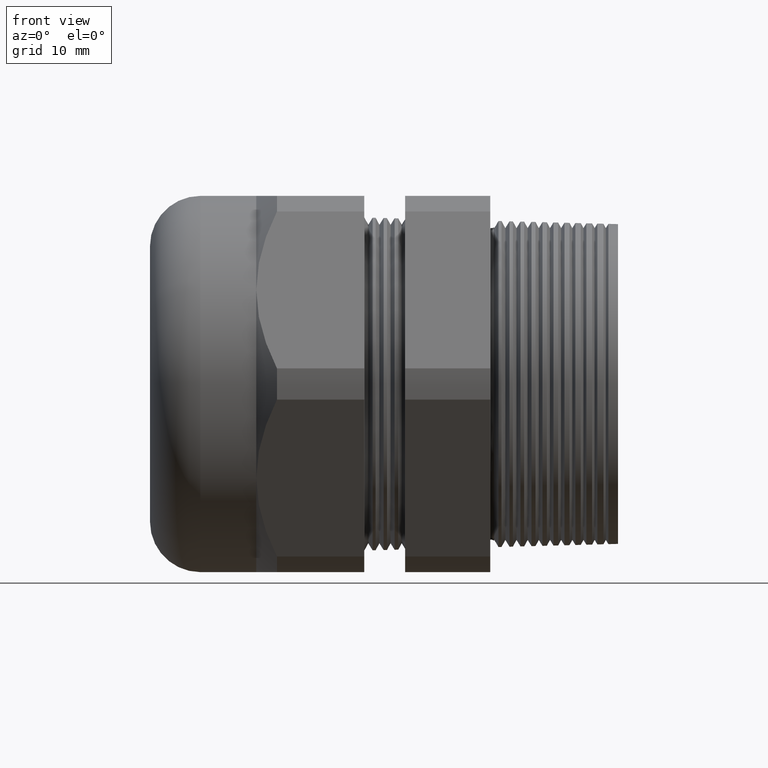
[diagram: clean part render]
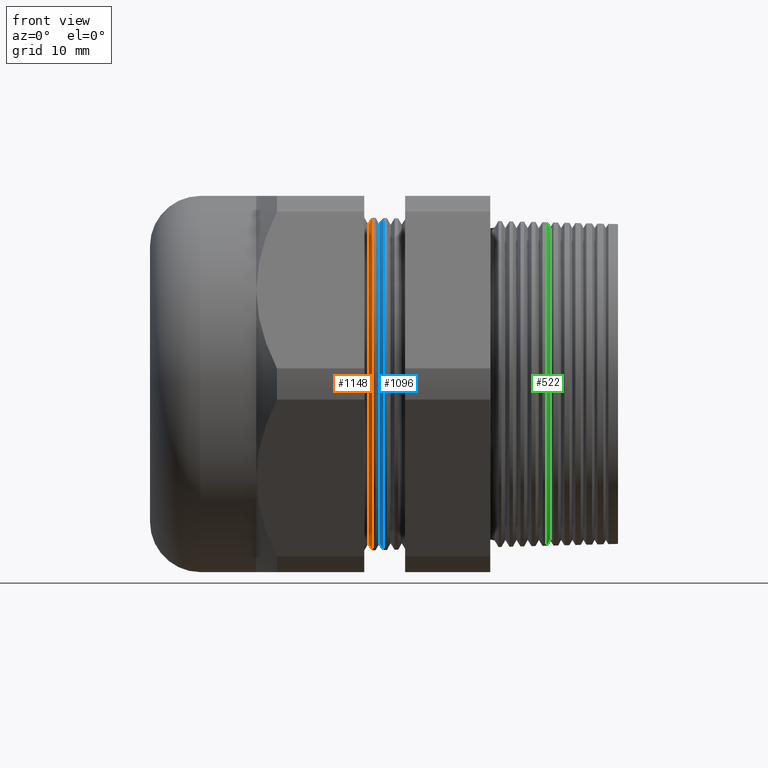
[diagram: same view with three faces highlighted in distinct colors, each labeled with its STEP entity id]
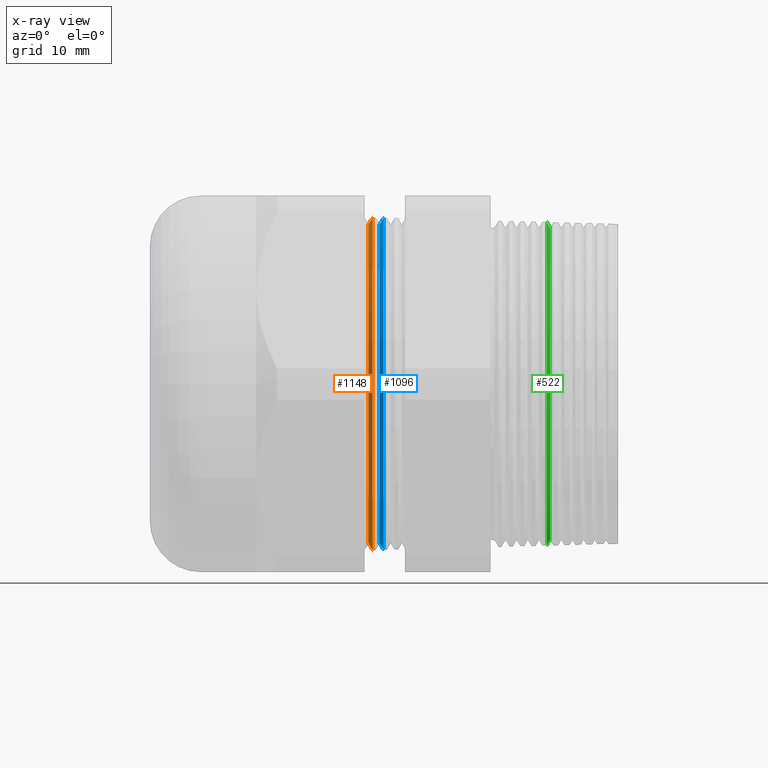
[diagram: x-ray of the same camera — body ghosted, the three highlighted faces saturated]
A machine part, front view with three faces highlighted in distinct colors.
The next image is the same camera in x-ray (body ghosted, the three faces saturated) — at least one of them is partly hidden behind the body in this view.
Their STEP definitions:

[orange] entity #1148 — the highlighted conical surface has half-angle 58.5 deg.
#143 = VERTEX_POINT ( 'NONE', #1492 ) ;
#144 = VERTEX_POINT ( 'NONE', #1491 ) ;
#174 = VERTEX_POINT ( 'NONE', #1560 ) ;
#176 = VERTEX_POINT ( 'NONE', #1554 ) ;
#178 = EDGE_CURVE ( 'NONE', #143, #176, #1553, .T. ) ;
#180 = EDGE_CURVE ( 'NONE', #144, #174, #1549, .T. ) ;
#1147 = EDGE_CURVE ( 'NONE', #176, #174, #3318, .T. ) ;
#1148 = ADVANCED_FACE ( 'NONE', ( #3313 ), #3312, .T. ) ;
#1149 = ORIENTED_EDGE ( 'NONE', *, *, #178, .F. ) ;
#1150 = ORIENTED_EDGE ( 'NONE', *, *, #1151, .T. ) ;
#1151 = EDGE_CURVE ( 'NONE', #143, #144, #3378, .T. ) ;
#1152 = ORIENTED_EDGE ( 'NONE', *, *, #180, .T. ) ;
#1153 = ORIENTED_EDGE ( 'NONE', *, *, #1147, .F. ) ;
#1170 = EDGE_LOOP ( 'NONE', ( #1149, #1150, #1152, #1153 ) ) ;
#1491 = CARTESIAN_POINT ( 'NONE',  ( -0.9874109809054328900, 0.0000000000000000000, -0.8844091762748934600 ) ) ;
#1492 = CARTESIAN_POINT ( 'NONE',  ( -0.9874109809054328900, 1.107203241417763200E-016, 0.8844091762748934600 ) ) ;
#1546 = DIRECTION ( 'NONE',  ( 0.5224985647159350300, 0.0000000000000000000, -0.8526401643541007300 ) ) ;
#1547 = VECTOR ( 'NONE', #1546, 39.37007874015748900 ) ;
#1548 = CARTESIAN_POINT ( 'NONE',  ( -0.9874109809054328900, 0.0000000000000000000, -0.8844091762748934600 ) ) ;
#1549 = LINE ( 'NONE', #1548, #1547 ) ;
#1550 = DIRECTION ( 'NONE',  ( 0.5224985647159350300, 1.044183048100722500E-016, 0.8526401643541007300 ) ) ;
#1551 = VECTOR ( 'NONE', #1550, 39.37007874015748900 ) ;
#1552 = CARTESIAN_POINT ( 'NONE',  ( -0.9874109809054328900, 1.083088866861595600E-016, 0.8844091762748934600 ) ) ;
#1553 = LINE ( 'NONE', #1552, #1551 ) ;
#1554 = CARTESIAN_POINT ( 'NONE',  ( -0.9632778059462380200, 0.0000000000000000000, 0.9237909385478313400 ) ) ;
#1560 = CARTESIAN_POINT ( 'NONE',  ( -0.9632778059462380200, 1.131317615973931000E-016, -0.9237909385478313400 ) ) ;
#3312 = CONICAL_SURFACE ( 'NONE', #3382, 0.8844091762748934600, 1.021017612416699000 ) ;
#3313 = FACE_OUTER_BOUND ( 'NONE', #1170, .T. ) ;
#3314 = DIRECTION ( 'NONE',  ( 0.0000000000000000000, 0.0000000000000000000, -1.000000000000000000 ) ) ;
#3315 = DIRECTION ( 'NONE',  ( 1.000000000000000000, 0.0000000000000000000, 0.0000000000000000000 ) ) ;
#3316 = CARTESIAN_POINT ( 'NONE',  ( -0.9632778059462380200, 0.0000000000000000000, 0.0000000000000000000 ) ) ;
#3317 = AXIS2_PLACEMENT_3D ( 'NONE', #3316, #3315, #3314 ) ;
#3318 = CIRCLE ( 'NONE', #3317, 0.9237909385478313400 ) ;
#3374 = DIRECTION ( 'NONE',  ( 0.0000000000000000000, 0.0000000000000000000, -1.000000000000000000 ) ) ;
#3375 = DIRECTION ( 'NONE',  ( 1.000000000000000000, 0.0000000000000000000, 0.0000000000000000000 ) ) ;
#3376 = CARTESIAN_POINT ( 'NONE',  ( -0.9874109809054328900, 0.0000000000000000000, 0.0000000000000000000 ) ) ;
#3377 = AXIS2_PLACEMENT_3D ( 'NONE', #3376, #3375, #3374 ) ;
#3378 = CIRCLE ( 'NONE', #3377, 0.8844091762748934600 ) ;
#3379 = DIRECTION ( 'NONE',  ( 0.0000000000000000000, 0.0000000000000000000, -1.000000000000000000 ) ) ;
#3380 = DIRECTION ( 'NONE',  ( 1.000000000000000000, 0.0000000000000000000, 0.0000000000000000000 ) ) ;
#3381 = CARTESIAN_POINT ( 'NONE',  ( -0.9874109809054328900, 0.0000000000000000000, 0.0000000000000000000 ) ) ;
#3382 = AXIS2_PLACEMENT_3D ( 'NONE', #3381, #3380, #3379 ) ;

[blue] entity #1096 — the highlighted conical surface has half-angle 58.5 deg.
#987 = VERTEX_POINT ( 'NONE', #3077 ) ;
#1040 = EDGE_CURVE ( 'NONE', #987, #1041, #3165, .T. ) ;
#1041 = VERTEX_POINT ( 'NONE', #3156 ) ;
#1044 = VERTEX_POINT ( 'NONE', #3213 ) ;
#1046 = EDGE_CURVE ( 'NONE', #1054, #1044, #3212, .T. ) ;
#1054 = VERTEX_POINT ( 'NONE', #3192 ) ;
#1096 = ADVANCED_FACE ( 'NONE', ( #3248 ), #3310, .T. ) ;
#1097 = EDGE_LOOP ( 'NONE', ( #1098, #1099, #1101, #1102 ) ) ;
#1098 = ORIENTED_EDGE ( 'NONE', *, *, #1040, .F. ) ;
#1099 = ORIENTED_EDGE ( 'NONE', *, *, #1100, .T. ) ;
#1100 = EDGE_CURVE ( 'NONE', #987, #1054, #3304, .T. ) ;
#1101 = ORIENTED_EDGE ( 'NONE', *, *, #1046, .T. ) ;
#1102 = ORIENTED_EDGE ( 'NONE', *, *, #1173, .T. ) ;
#1173 = EDGE_CURVE ( 'NONE', #1044, #1041, #3359, .T. ) ;
#3077 = CARTESIAN_POINT ( 'NONE',  ( -0.9254109809054328300, 1.106224818276601700E-016, 0.8844091762748934600 ) ) ;
#3156 = CARTESIAN_POINT ( 'NONE',  ( -0.9022569919000226200, 0.0000000000000000000, 0.9221930522971296700 ) ) ;
#3157 = DIRECTION ( 'NONE',  ( 0.5224985647159350300, 1.044183048100722500E-016, 0.8526401643541007300 ) ) ;
#3158 = VECTOR ( 'NONE', #3157, 39.37007874015748900 ) ;
#3159 = CARTESIAN_POINT ( 'NONE',  ( -0.9254109809054328300, 1.083088866861595600E-016, 0.8844091762748934600 ) ) ;
#3165 = LINE ( 'NONE', #3159, #3158 ) ;
#3192 = CARTESIAN_POINT ( 'NONE',  ( -0.9254109809054328300, 0.0000000000000000000, -0.8844091762748934600 ) ) ;
#3209 = DIRECTION ( 'NONE',  ( 0.5224985647159350300, 0.0000000000000000000, -0.8526401643541007300 ) ) ;
#3210 = VECTOR ( 'NONE', #3209, 39.37007874015748900 ) ;
#3211 = CARTESIAN_POINT ( 'NONE',  ( -0.9254109809054328300, 0.0000000000000000000, -0.8844091762748934600 ) ) ;
#3212 = LINE ( 'NONE', #3211, #3210 ) ;
#3213 = CARTESIAN_POINT ( 'NONE',  ( -0.9022569919000226200, 1.129360769691607600E-016, -0.9221930522971296700 ) ) ;
#3248 = FACE_OUTER_BOUND ( 'NONE', #1097, .T. ) ;
#3301 = DIRECTION ( 'NONE',  ( 0.0000000000000000000, 0.0000000000000000000, -1.000000000000000000 ) ) ;
#3302 = DIRECTION ( 'NONE',  ( 1.000000000000000000, 0.0000000000000000000, 0.0000000000000000000 ) ) ;
#3303 = AXIS2_PLACEMENT_3D ( 'NONE', #3309, #3302, #3301 ) ;
#3304 = CIRCLE ( 'NONE', #3303, 0.8844091762748934600 ) ;
#3305 = DIRECTION ( 'NONE',  ( 0.0000000000000000000, 0.0000000000000000000, -1.000000000000000000 ) ) ;
#3306 = DIRECTION ( 'NONE',  ( 1.000000000000000000, 0.0000000000000000000, 0.0000000000000000000 ) ) ;
#3307 = CARTESIAN_POINT ( 'NONE',  ( -0.9254109809054328300, 0.0000000000000000000, 0.0000000000000000000 ) ) ;
#3308 = AXIS2_PLACEMENT_3D ( 'NONE', #3307, #3306, #3305 ) ;
#3309 = CARTESIAN_POINT ( 'NONE',  ( -0.9254109809054328300, 0.0000000000000000000, 0.0000000000000000000 ) ) ;
#3310 = CONICAL_SURFACE ( 'NONE', #3308, 0.8844091762748934600, 1.021017612416699000 ) ;
#3349 = DIRECTION ( 'NONE',  ( 0.0000000000000000000, 0.0000000000000000000, -1.000000000000000000 ) ) ;
#3350 = DIRECTION ( 'NONE',  ( -1.000000000000000000, 0.0000000000000000000, 0.0000000000000000000 ) ) ;
#3351 = CARTESIAN_POINT ( 'NONE',  ( -0.9022569919000226200, 0.0000000000000000000, 0.0000000000000000000 ) ) ;
#3352 = AXIS2_PLACEMENT_3D ( 'NONE', #3351, #3350, #3349 ) ;
#3359 = CIRCLE ( 'NONE', #3352, 0.9221930522971297800 ) ;

[green] entity #522 — the highlighted conical surface has half-angle 61.5 deg.
#351 = VERTEX_POINT ( 'NONE', #1897 ) ;
#352 = VERTEX_POINT ( 'NONE', #1896 ) ;
#356 = EDGE_CURVE ( 'NONE', #352, #358, #1894, .T. ) ;
#358 = VERTEX_POINT ( 'NONE', #1890 ) ;
#505 = ORIENTED_EDGE ( 'NONE', *, *, #4194, .T. ) ;
#512 = ORIENTED_EDGE ( 'NONE', *, *, #356, .F. ) ;
#514 = ORIENTED_EDGE ( 'NONE', *, *, #516, .F. ) ;
#515 = EDGE_LOOP ( 'NONE', ( #512, #514, #517, #505 ) ) ;
#516 = EDGE_CURVE ( 'NONE', #351, #352, #2154, .T. ) ;
#517 = ORIENTED_EDGE ( 'NONE', *, *, #3371, .T. ) ;
#522 = ADVANCED_FACE ( 'NONE', ( #2149 ), #2207, .T. ) ;
#1890 = CARTESIAN_POINT ( 'NONE',  ( 0.004471085542857342100, 1.100671635388403000E-016, -0.8984495419766371800 ) ) ;
#1891 = DIRECTION ( 'NONE',  ( -0.4771587602596058500, 1.076240564057396400E-016, -0.8788171126619667200 ) ) ;
#1892 = VECTOR ( 'NONE', #1891, 39.37007874015748100 ) ;
#1893 = CARTESIAN_POINT ( 'NONE',  ( 0.0000000000000000000, 1.110367973366375700E-016, -0.9066842571584370300 ) ) ;
#1894 = LINE ( 'NONE', #1893, #1892 ) ;
#1896 = CARTESIAN_POINT ( 'NONE',  ( 0.02203901909456552200, 1.080470953396882000E-016, -0.8660934334333305600 ) ) ;
#1897 = CARTESIAN_POINT ( 'NONE',  ( 0.02203901909456552200, 0.0000000000000000000, 0.8660934334333305600 ) ) ;
#2144 = CARTESIAN_POINT ( 'NONE',  ( 0.0000000000000000000, 0.0000000000000000000, 0.0000000000000000000 ) ) ;
#2149 = FACE_OUTER_BOUND ( 'NONE', #515, .T. ) ;
#2150 = DIRECTION ( 'NONE',  ( 0.0000000000000000000, 0.0000000000000000000, -1.000000000000000000 ) ) ;
#2151 = DIRECTION ( 'NONE',  ( 1.000000000000000000, 0.0000000000000000000, 0.0000000000000000000 ) ) ;
#2152 = CARTESIAN_POINT ( 'NONE',  ( 0.02203901909456552200, 0.0000000000000000000, 0.0000000000000000000 ) ) ;
#2153 = AXIS2_PLACEMENT_3D ( 'NONE', #2152, #2151, #2150 ) ;
#2154 = CIRCLE ( 'NONE', #2153, 0.8660934334333305600 ) ;
#2204 = DIRECTION ( 'NONE',  ( 0.0000000000000000000, 0.0000000000000000000, 1.000000000000000000 ) ) ;
#2205 = DIRECTION ( 'NONE',  ( -1.000000000000000000, 0.0000000000000000000, 0.0000000000000000000 ) ) ;
#2206 = AXIS2_PLACEMENT_3D ( 'NONE', #2144, #2205, #2204 ) ;
#2207 = CONICAL_SURFACE ( 'NONE', #2206, 0.9066842571584370300, 1.073377489976515600 ) ;
#3371 = EDGE_CURVE ( 'NONE', #351, #3400, #3449, .T. ) ;
#3400 = VERTEX_POINT ( 'NONE', #3508 ) ;
#3448 = CARTESIAN_POINT ( 'NONE',  ( 0.0000000000000000000, 0.0000000000000000000, 0.9066842571584370300 ) ) ;
#3449 = LINE ( 'NONE', #3448, #3510 ) ;
#3508 = CARTESIAN_POINT ( 'NONE',  ( 0.004471085542857342100, 0.0000000000000000000, 0.8984495419766371800 ) ) ;
#3509 = DIRECTION ( 'NONE',  ( -0.4771587602596058500, 0.0000000000000000000, 0.8788171126619667200 ) ) ;
#3510 = VECTOR ( 'NONE', #3509, 39.37007874015748100 ) ;
#3907 = DIRECTION ( 'NONE',  ( 0.0000000000000000000, 0.0000000000000000000, 1.000000000000000000 ) ) ;
#3909 = DIRECTION ( 'NONE',  ( 1.000000000000000000, 0.0000000000000000000, 0.0000000000000000000 ) ) ;
#3910 = CARTESIAN_POINT ( 'NONE',  ( 0.004471085542857342100, 0.0000000000000000000, 0.0000000000000000000 ) ) ;
#3911 = AXIS2_PLACEMENT_3D ( 'NONE', #3910, #3909, #3907 ) ;
#3912 = CIRCLE ( 'NONE', #3911, 0.8984495419766371800 ) ;
#4194 = EDGE_CURVE ( 'NONE', #3400, #358, #3912, .T. ) ;